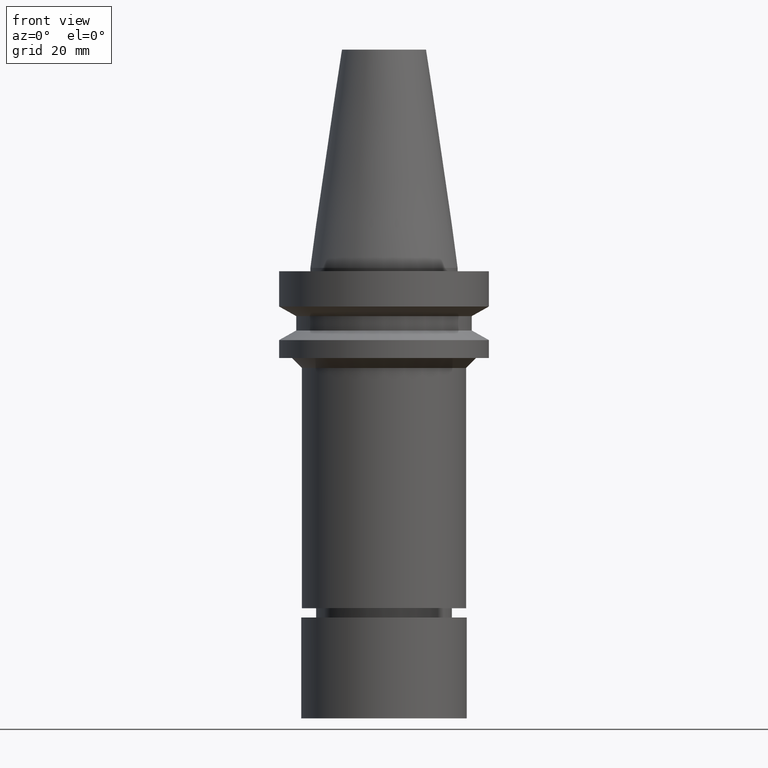
[diagram: clean part render]
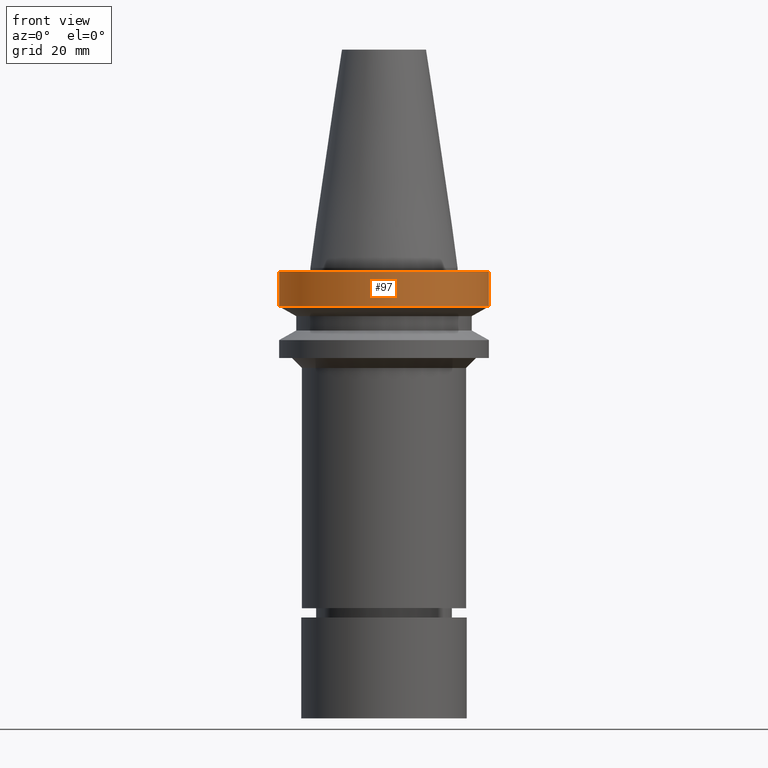
[diagram: same view with one face highlighted and labeled with its STEP entity id]
A machine part, front view. The second image highlights one B-rep face of the part: STEP entity #97.
In plain terms, the highlighted cylindrical surface (bore or boss wall) has radius 31.5 mm, axis along (0, -0, -1).
Its self-contained STEP definition (entity closure, byte-faithful):
#97=ADVANCED_FACE('Unnamed[1]',(#231,#232),#233,.T.);
#129=EDGE_CURVE('Unnamed[1]',#282,#282,#283,.T.);
#151=EDGE_CURVE('Unnamed[1]',#316,#316,#317,.T.);
#231=FACE_BOUND('',#413,.T.);
#232=FACE_BOUND('',#414,.T.);
#233=CYLINDRICAL_SURFACE('',#415,31.5);
#282=VERTEX_POINT('',#477);
#283=CIRCLE('',#478,31.4999999999996);
#316=VERTEX_POINT('',#520);
#317=CIRCLE('',#521,31.5000000000003);
#413=EDGE_LOOP('',(#609));
#414=EDGE_LOOP('',(#610));
#415=AXIS2_PLACEMENT_3D('',#611,#612,#613);
#477=CARTESIAN_POINT('',(6.12323399573568E-017,31.4999999999997,-0.999999999999825));
#478=AXIS2_PLACEMENT_3D('',#667,#668,#669);
#520=CARTESIAN_POINT('',(7.08182973902924E-016,31.5000000000004,-11.5655056526664));
#521=AXIS2_PLACEMENT_3D('',#705,#706,#707);
#609=ORIENTED_EDGE('',*,*,#151,.F.);
#610=ORIENTED_EDGE('',*,*,#129,.T.);
#611=CARTESIAN_POINT('',(3.84707656930141E-016,7.65155455473257E-014,-6.28275282633309));
#612=DIRECTION('',(6.12323399573677E-017,-8.98149397141932E-018,-1.0));
#613=DIRECTION('',(-4.27719483858603E-033,1.0,-8.98149397141931E-018));
#667=CARTESIAN_POINT('',(6.12323399573572E-017,7.65629925599879E-014,-0.999999999999829));
#668=DIRECTION('',(6.12323399573677E-017,-8.98149397141931E-018,-1.0));
#669=DIRECTION('',(-4.27719483858603E-033,1.0,-8.98149397141931E-018));
#705=CARTESIAN_POINT('',(7.08182973902924E-016,7.64680985346635E-014,-11.5655056526664));
#706=DIRECTION('',(6.12323399573677E-017,-8.98149397141932E-018,-1.0));
#707=DIRECTION('',(-4.27719483858603E-033,1.0,-8.98149397141932E-018));